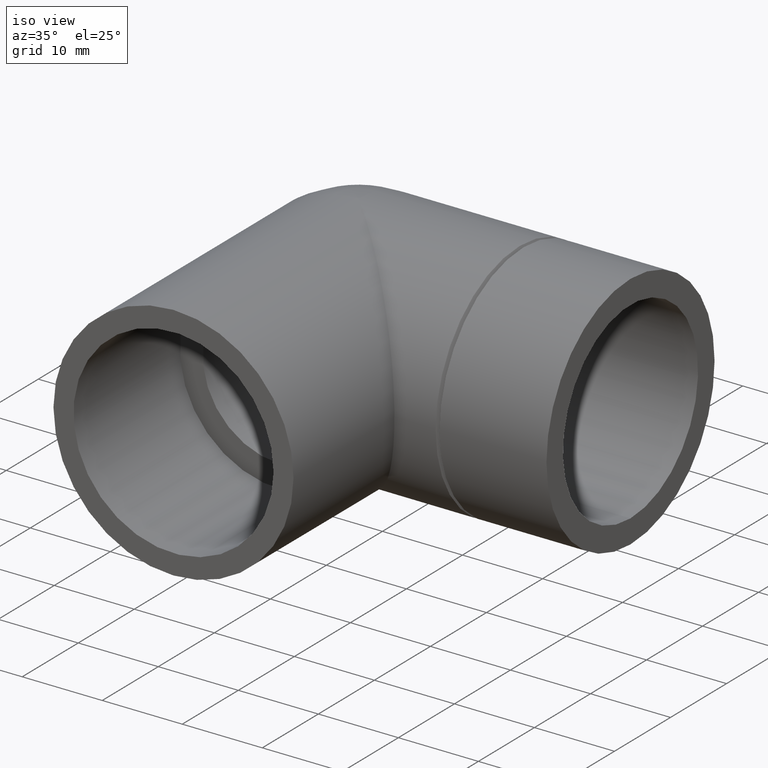
[diagram: clean part render]
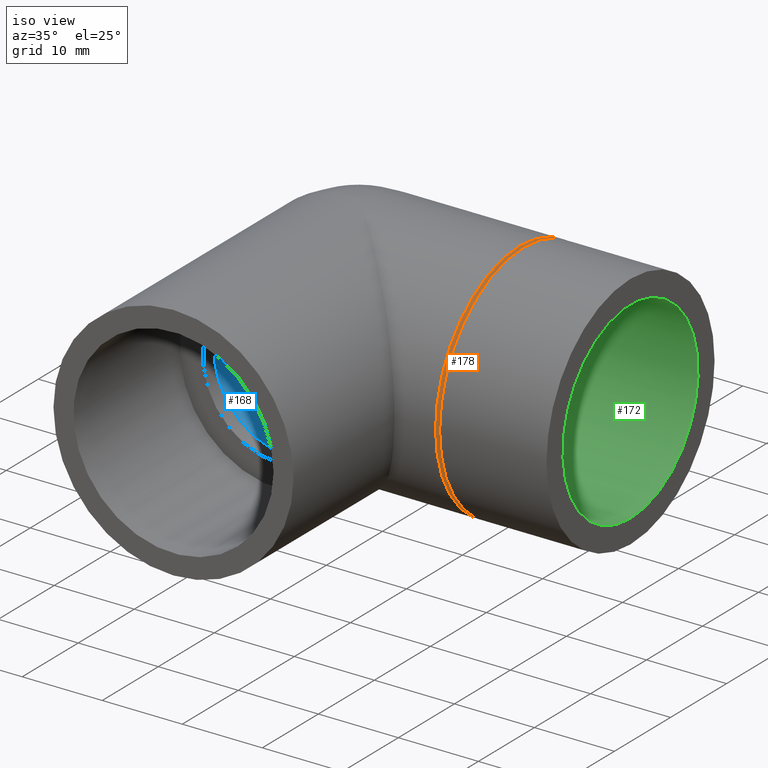
[diagram: same view with three faces highlighted in distinct colors, each labeled with its STEP entity id]
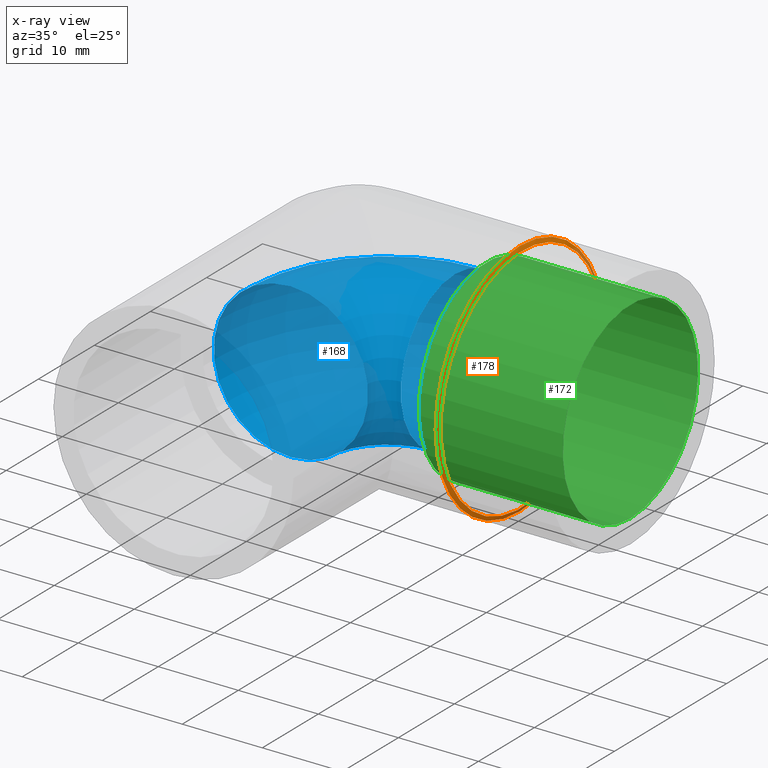
[diagram: x-ray of the same camera — body ghosted, the three highlighted faces saturated]
A machine part, iso view with three faces highlighted in distinct colors.
The next image is the same camera in x-ray (body ghosted, the three faces saturated) — at least one of them is partly hidden behind the body in this view.
Their STEP definitions:

[orange] entity #178 — the highlighted conical surface has half-angle 63.435 deg.
#15=CONICAL_SURFACE('',#208,14.75,63.4349488229221);
#34=FACE_BOUND('',#75,.T.);
#49=FACE_OUTER_BOUND('',#74,.T.);
#74=EDGE_LOOP('',(#152));
#75=EDGE_LOOP('',(#153));
#93=CIRCLE('',#207,15.);
#94=CIRCLE('',#209,14.5);
#108=VERTEX_POINT('',#314);
#109=VERTEX_POINT('',#317);
#124=EDGE_CURVE('',#108,#108,#93,.T.);
#125=EDGE_CURVE('',#109,#109,#94,.T.);
#152=ORIENTED_EDGE('',*,*,#124,.T.);
#153=ORIENTED_EDGE('',*,*,#125,.F.);
#178=ADVANCED_FACE('',(#49,#34),#15,.T.);
#207=AXIS2_PLACEMENT_3D('',#315,#263,#264);
#208=AXIS2_PLACEMENT_3D('',#316,#265,#266);
#209=AXIS2_PLACEMENT_3D('',#318,#267,#268);
#263=DIRECTION('center_axis',(1.,0.,0.));
#264=DIRECTION('ref_axis',(0.,0.,-1.));
#265=DIRECTION('center_axis',(-1.,0.,0.));
#266=DIRECTION('ref_axis',(0.,1.,0.));
#267=DIRECTION('center_axis',(1.,0.,0.));
#268=DIRECTION('ref_axis',(0.,0.,-1.));
#314=CARTESIAN_POINT('',(20.15,15.,0.));
#315=CARTESIAN_POINT('Origin',(20.15,0.,0.));
#316=CARTESIAN_POINT('Origin',(20.275,0.,0.));
#317=CARTESIAN_POINT('',(20.4,14.5,0.));
#318=CARTESIAN_POINT('Origin',(20.4,0.,0.));

[blue] entity #168 — the highlighted toroidal blend (fillet) surface has major radius 12.0585 mm and minor (blend) radius 9.6468 mm.
#23=TOROIDAL_SURFACE('',#187,12.0585,9.6468);
#25=FACE_BOUND('',#56,.T.);
#39=FACE_OUTER_BOUND('',#55,.T.);
#55=EDGE_LOOP('',(#130));
#56=EDGE_LOOP('',(#131));
#83=CIRCLE('',#186,9.6468);
#84=CIRCLE('',#188,9.6468);
#98=VERTEX_POINT('',#283);
#99=VERTEX_POINT('',#286);
#113=EDGE_CURVE('',#98,#98,#83,.T.);
#114=EDGE_CURVE('',#99,#99,#84,.T.);
#130=ORIENTED_EDGE('',*,*,#113,.T.);
#131=ORIENTED_EDGE('',*,*,#114,.F.);
#168=ADVANCED_FACE('',(#39,#25),#23,.F.);
#186=AXIS2_PLACEMENT_3D('',#284,#221,#222);
#187=AXIS2_PLACEMENT_3D('',#285,#223,#224);
#188=AXIS2_PLACEMENT_3D('',#287,#225,#226);
#221=DIRECTION('center_axis',(-2.83276944882399E-16,-1.,0.));
#222=DIRECTION('ref_axis',(0.,0.,1.));
#223=DIRECTION('center_axis',(0.,0.,1.));
#224=DIRECTION('ref_axis',(1.,0.,0.));
#225=DIRECTION('center_axis',(-1.,0.,0.));
#226=DIRECTION('ref_axis',(0.,0.,1.));
#283=CARTESIAN_POINT('',(1.04637555366758E-15,-12.0585,-9.6468));
#284=CARTESIAN_POINT('Origin',(2.22776782786905E-15,-12.0585,0.));
#285=CARTESIAN_POINT('Origin',(12.0585,-12.0585,0.));
#286=CARTESIAN_POINT('',(12.0585,1.17407049558273E-15,-9.6468));
#287=CARTESIAN_POINT('Origin',(12.0585,-7.32177861873785E-18,0.));

[green] entity #172 — the highlighted cylindrical surface (bore or boss wall) has radius 12.0585 mm, axis along (-1, 0, 0).
#29=FACE_BOUND('',#64,.T.);
#43=FACE_OUTER_BOUND('',#63,.T.);
#63=EDGE_LOOP('',(#138));
#64=EDGE_LOOP('',(#139));
#88=CIRCLE('',#196,12.0585);
#89=CIRCLE('',#197,12.0585);
#103=VERTEX_POINT('',#298);
#104=VERTEX_POINT('',#300);
#118=EDGE_CURVE('',#103,#103,#88,.T.);
#119=EDGE_CURVE('',#104,#104,#89,.T.);
#138=ORIENTED_EDGE('',*,*,#118,.T.);
#139=ORIENTED_EDGE('',*,*,#119,.F.);
#163=CYLINDRICAL_SURFACE('',#195,12.0585);
#172=ADVANCED_FACE('',(#43,#29),#163,.F.);
#195=AXIS2_PLACEMENT_3D('',#297,#239,#240);
#196=AXIS2_PLACEMENT_3D('',#299,#241,#242);
#197=AXIS2_PLACEMENT_3D('',#301,#243,#244);
#239=DIRECTION('center_axis',(-1.,0.,0.));
#240=DIRECTION('ref_axis',(0.,0.,1.));
#241=DIRECTION('center_axis',(-1.,0.,0.));
#242=DIRECTION('ref_axis',(0.,0.,1.));
#243=DIRECTION('center_axis',(-1.,0.,0.));
#244=DIRECTION('ref_axis',(0.,0.,1.));
#297=CARTESIAN_POINT('Origin',(34.,0.,0.));
#298=CARTESIAN_POINT('',(16.,1.47674034275184E-15,-12.0585));
#299=CARTESIAN_POINT('Origin',(16.,0.,0.));
#300=CARTESIAN_POINT('',(34.,1.47674034275184E-15,-12.0585));
#301=CARTESIAN_POINT('Origin',(34.,0.,0.));